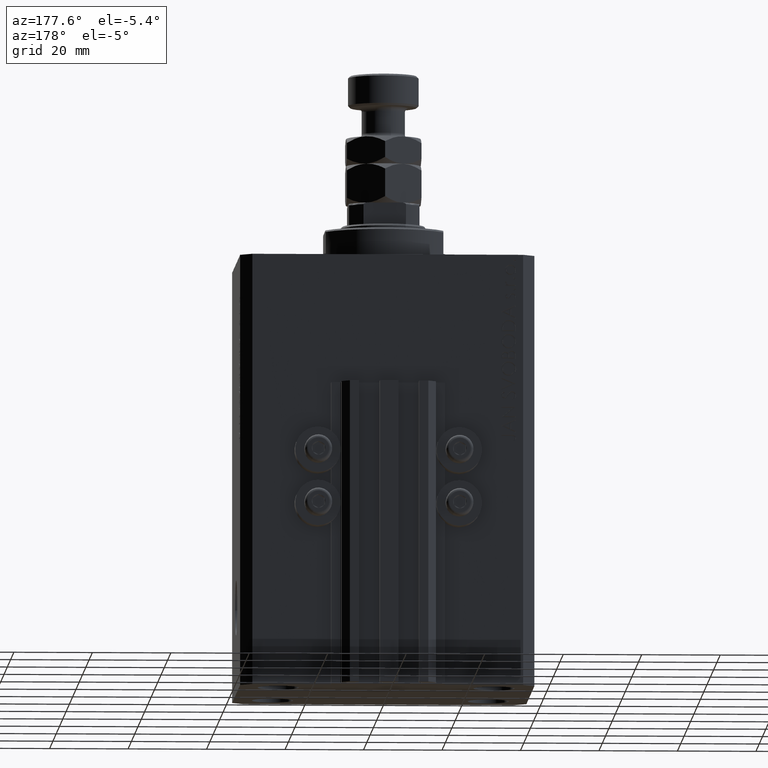
[diagram: clean part render]
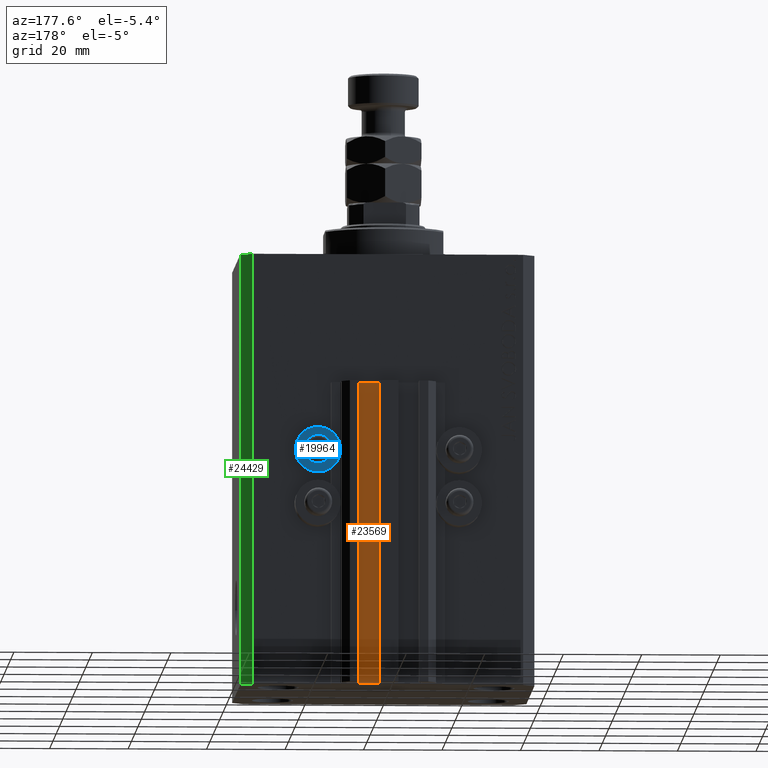
[diagram: same view with three faces highlighted in distinct colors, each labeled with its STEP entity id]
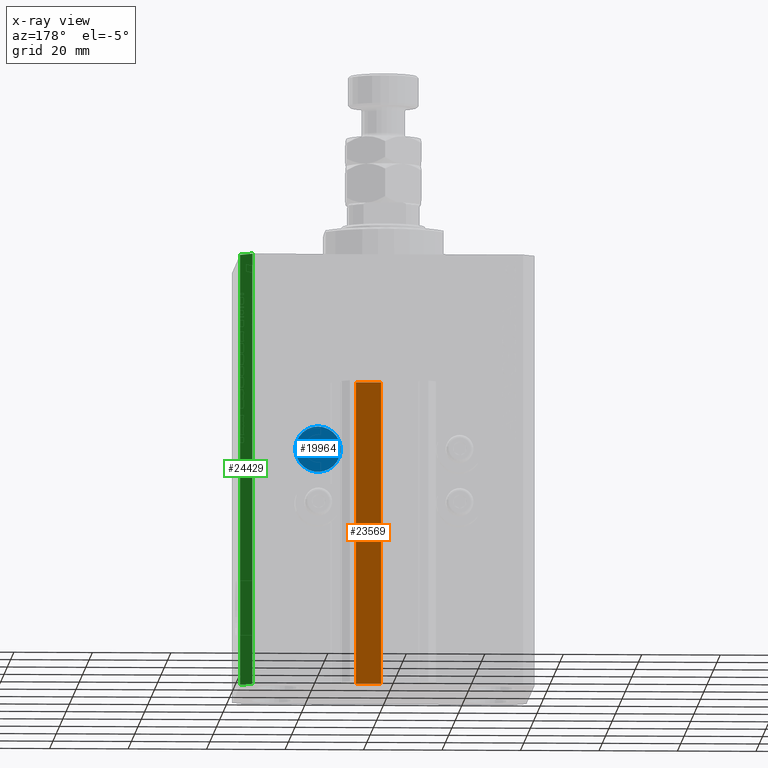
[diagram: x-ray of the same camera — body ghosted, the three highlighted faces saturated]
A machine part, auxiliary view with three faces highlighted in distinct colors.
The next image is the same camera in x-ray (body ghosted, the three faces saturated) — at least one of them is partly hidden behind the body in this view.
Their STEP definitions:

[orange] entity #23569 — the highlighted planar face has unit normal (-0, 1, 0).
#69 = LINE ( 'NONE', #26750, #17432 ) ;
#508 = DIRECTION ( 'NONE',  ( -1.000000000000000000, -1.084202172485504828E-15, 0.000000000000000000 ) ) ;
#892 = CARTESIAN_POINT ( 'NONE',  ( 1.800000000000000933, 29.50000000000000000, -110.0000000000000000 ) ) ;
#1590 = VERTEX_POINT ( 'NONE', #12368 ) ;
#4855 = ORIENTED_EDGE ( 'NONE', *, *, #18651, .T. ) ;
#5260 = DIRECTION ( 'NONE',  ( -1.084202172485504828E-15, 1.000000000000000000, 0.000000000000000000 ) ) ;
#5612 = DIRECTION ( 'NONE',  ( -1.000000000000000000, -1.084202172485504828E-15, 0.000000000000000000 ) ) ;
#6675 = VECTOR ( 'NONE', #508, 1000.000000000000000 ) ;
#10949 = VECTOR ( 'NONE', #44022, 1000.000000000000000 ) ;
#12368 = CARTESIAN_POINT ( 'NONE',  ( 1.800000000000000933, 29.50000000000000000, -33.00000000000000000 ) ) ;
#12680 = PLANE ( 'NONE',  #24469 ) ;
#12785 = LINE ( 'NONE', #27386, #48490 ) ;
#17432 = VECTOR ( 'NONE', #26014, 1000.000000000000000 ) ;
#18651 = EDGE_CURVE ( 'NONE', #36829, #1590, #44258, .T. ) ;
#20315 = CARTESIAN_POINT ( 'NONE',  ( 8.199999999999999289, 29.50000000000000711, -33.00000000000000000 ) ) ;
#22689 = VERTEX_POINT ( 'NONE', #45024 ) ;
#23569 = ADVANCED_FACE ( 'NONE', ( #27273 ), #12680, .T. ) ;
#24469 = AXIS2_PLACEMENT_3D ( 'NONE', #39133, #5260, #42364 ) ;
#26014 = DIRECTION ( 'NONE',  ( 0.000000000000000000, 0.000000000000000000, 1.000000000000000000 ) ) ;
#26750 = CARTESIAN_POINT ( 'NONE',  ( 8.199999999999999289, 29.50000000000000711, -110.0000000000000000 ) ) ;
#26771 = EDGE_LOOP ( 'NONE', ( #31563, #30402, #47610, #4855 ) ) ;
#27273 = FACE_OUTER_BOUND ( 'NONE', #26771, .T. ) ;
#27386 = CARTESIAN_POINT ( 'NONE',  ( 8.199999999999999289, 29.50000000000000711, -33.00000000000000000 ) ) ;
#28048 = EDGE_CURVE ( 'NONE', #22689, #44833, #69, .T. ) ;
#30402 = ORIENTED_EDGE ( 'NONE', *, *, #28048, .F. ) ;
#31563 = ORIENTED_EDGE ( 'NONE', *, *, #38624, .F. ) ;
#33633 = LINE ( 'NONE', #34362, #6675 ) ;
#34362 = CARTESIAN_POINT ( 'NONE',  ( 8.199999999999999289, 29.50000000000000711, -110.0000000000000000 ) ) ;
#36336 = CARTESIAN_POINT ( 'NONE',  ( 1.800000000000000933, 29.50000000000000000, -110.0000000000000000 ) ) ;
#36829 = VERTEX_POINT ( 'NONE', #892 ) ;
#38624 = EDGE_CURVE ( 'NONE', #44833, #1590, #12785, .T. ) ;
#39133 = CARTESIAN_POINT ( 'NONE',  ( 8.199999999999999289, 29.50000000000000711, -110.0000000000000000 ) ) ;
#42364 = DIRECTION ( 'NONE',  ( -1.000000000000000000, -1.084202172485504828E-15, 0.000000000000000000 ) ) ;
#42914 = EDGE_CURVE ( 'NONE', #22689, #36829, #33633, .T. ) ;
#44022 = DIRECTION ( 'NONE',  ( 0.000000000000000000, 0.000000000000000000, 1.000000000000000000 ) ) ;
#44258 = LINE ( 'NONE', #36336, #10949 ) ;
#44833 = VERTEX_POINT ( 'NONE', #20315 ) ;
#45024 = CARTESIAN_POINT ( 'NONE',  ( 8.199999999999999289, 29.50000000000000711, -110.0000000000000000 ) ) ;
#47610 = ORIENTED_EDGE ( 'NONE', *, *, #42914, .T. ) ;
#48490 = VECTOR ( 'NONE', #5612, 1000.000000000000000 ) ;

[blue] entity #19964 — the highlighted planar face has unit normal (0, -1, 0).
#2362 = DIRECTION ( 'NONE',  ( 0.000000000000000000, 0.000000000000000000, 1.000000000000000000 ) ) ;
#2607 = EDGE_CURVE ( 'NONE', #8449, #40797, #41212, .T. ) ;
#3259 = EDGE_CURVE ( 'NONE', #40797, #8449, #15222, .T. ) ;
#6211 = ORIENTED_EDGE ( 'NONE', *, *, #2607, .F. ) ;
#6596 = DIRECTION ( 'NONE',  ( -0.000000000000000000, -1.000000000000000000, -0.000000000000000000 ) ) ;
#8449 = VERTEX_POINT ( 'NONE', #8467 ) ;
#8467 = CARTESIAN_POINT ( 'NONE',  ( 18.00000000000000355, 32.49999999996100541, -56.20000000000000284 ) ) ;
#9605 = CIRCLE ( 'NONE', #15933, 2.000000000000001776 ) ;
#9680 = VERTEX_POINT ( 'NONE', #36088 ) ;
#10308 = CIRCLE ( 'NONE', #25322, 2.000000000000001776 ) ;
#12457 = ORIENTED_EDGE ( 'NONE', *, *, #31250, .T. ) ;
#13786 = DIRECTION ( 'NONE',  ( 0.000000000000000000, 0.000000000000000000, 1.000000000000000000 ) ) ;
#14348 = FACE_BOUND ( 'NONE', #22888, .T. ) ;
#15186 = AXIS2_PLACEMENT_3D ( 'NONE', #47636, #6596, #13786 ) ;
#15222 = CIRCLE ( 'NONE', #23080, 5.799999999999999822 ) ;
#15854 = AXIS2_PLACEMENT_3D ( 'NONE', #48195, #43777, #29421 ) ;
#15933 = AXIS2_PLACEMENT_3D ( 'NONE', #19497, #22051, #48488 ) ;
#19497 = CARTESIAN_POINT ( 'NONE',  ( 18.00000000000000355, 32.49999999996100541, -50.39999999999999858 ) ) ;
#19964 = ADVANCED_FACE ( 'NONE', ( #14348, #24736 ), #39816, .F. ) ;
#20625 = CARTESIAN_POINT ( 'NONE',  ( 18.00000000000000355, 32.49999999996100541, -44.60000000000000142 ) ) ;
#22051 = DIRECTION ( 'NONE',  ( -0.000000000000000000, -1.000000000000000000, -0.000000000000000000 ) ) ;
#22888 = EDGE_LOOP ( 'NONE', ( #31635, #12457 ) ) ;
#23080 = AXIS2_PLACEMENT_3D ( 'NONE', #23658, #46404, #34320 ) ;
#23658 = CARTESIAN_POINT ( 'NONE',  ( 18.00000000000000355, 32.49999999996100541, -50.39999999999999858 ) ) ;
#24408 = EDGE_CURVE ( 'NONE', #27247, #9680, #10308, .T. ) ;
#24736 = FACE_OUTER_BOUND ( 'NONE', #39108, .T. ) ;
#25322 = AXIS2_PLACEMENT_3D ( 'NONE', #39936, #36215, #2362 ) ;
#27247 = VERTEX_POINT ( 'NONE', #37897 ) ;
#29421 = DIRECTION ( 'NONE',  ( -0.000000000000000000, 0.000000000000000000, -1.000000000000000000 ) ) ;
#31250 = EDGE_CURVE ( 'NONE', #9680, #27247, #9605, .T. ) ;
#31635 = ORIENTED_EDGE ( 'NONE', *, *, #24408, .T. ) ;
#34320 = DIRECTION ( 'NONE',  ( 0.000000000000000000, 0.000000000000000000, 1.000000000000000000 ) ) ;
#36088 = CARTESIAN_POINT ( 'NONE',  ( 18.00000000000000355, 32.49999999996100541, -52.40000000000000568 ) ) ;
#36215 = DIRECTION ( 'NONE',  ( -0.000000000000000000, -1.000000000000000000, -0.000000000000000000 ) ) ;
#37897 = CARTESIAN_POINT ( 'NONE',  ( 18.00000000000000355, 32.49999999996100541, -48.39999999999999858 ) ) ;
#39108 = EDGE_LOOP ( 'NONE', ( #42699, #6211 ) ) ;
#39816 = PLANE ( 'NONE',  #15854 ) ;
#39936 = CARTESIAN_POINT ( 'NONE',  ( 18.00000000000000355, 32.49999999996100541, -50.39999999999999858 ) ) ;
#40797 = VERTEX_POINT ( 'NONE', #20625 ) ;
#41212 = CIRCLE ( 'NONE', #15186, 5.799999999999999822 ) ;
#42699 = ORIENTED_EDGE ( 'NONE', *, *, #3259, .F. ) ;
#43777 = DIRECTION ( 'NONE',  ( 0.000000000000000000, -1.000000000000000000, -0.000000000000000000 ) ) ;
#46404 = DIRECTION ( 'NONE',  ( -0.000000000000000000, -1.000000000000000000, -0.000000000000000000 ) ) ;
#47636 = CARTESIAN_POINT ( 'NONE',  ( 18.00000000000000355, 32.49999999996100541, -50.39999999999999858 ) ) ;
#48195 = CARTESIAN_POINT ( 'NONE',  ( 12.20000000000000284, 32.49999999996100541, -50.39999999999999858 ) ) ;
#48488 = DIRECTION ( 'NONE',  ( 0.000000000000000000, 0.000000000000000000, 1.000000000000000000 ) ) ;

[green] entity #24429 — the highlighted planar face has unit normal (0.7071, 0.7071, 0).
#2760 = CARTESIAN_POINT ( 'NONE',  ( 37.50000000000051870, 24.49999999999995381, -110.0000000000000000 ) ) ;
#3168 = CARTESIAN_POINT ( 'NONE',  ( 37.50000000000051870, 24.49999999999995381, 0.000000000000000000 ) ) ;
#4456 = VERTEX_POINT ( 'NONE', #29672 ) ;
#4761 = AXIS2_PLACEMENT_3D ( 'NONE', #10023, #47593, #13736 ) ;
#5208 = DIRECTION ( 'NONE',  ( -0.7071067811865364705, 0.7071067811865584529, 0.000000000000000000 ) ) ;
#8564 = EDGE_CURVE ( 'NONE', #34014, #27565, #35894, .T. ) ;
#10023 = CARTESIAN_POINT ( 'NONE',  ( 37.50000000000051870, 24.49999999999995381, -110.0000000000000000 ) ) ;
#10175 = DIRECTION ( 'NONE',  ( 0.000000000000000000, 0.000000000000000000, 1.000000000000000000 ) ) ;
#10349 = VERTEX_POINT ( 'NONE', #32218 ) ;
#11694 = LINE ( 'NONE', #18636, #43637 ) ;
#13351 = ORIENTED_EDGE ( 'NONE', *, *, #8564, .F. ) ;
#13736 = DIRECTION ( 'NONE',  ( -0.7071067811865364705, 0.7071067811865584529, 0.000000000000000000 ) ) ;
#15418 = DIRECTION ( 'NONE',  ( 0.000000000000000000, 0.000000000000000000, 1.000000000000000000 ) ) ;
#17455 = FACE_OUTER_BOUND ( 'NONE', #33706, .T. ) ;
#18447 = EDGE_CURVE ( 'NONE', #34014, #4456, #46250, .T. ) ;
#18529 = VECTOR ( 'NONE', #10175, 1000.000000000000000 ) ;
#18636 = CARTESIAN_POINT ( 'NONE',  ( 34.50000000000056843, 27.50000000000000000, -110.0000000000000000 ) ) ;
#20048 = CARTESIAN_POINT ( 'NONE',  ( 37.50000000000051870, 24.49999999999995381, -110.0000000000000000 ) ) ;
#20738 = ORIENTED_EDGE ( 'NONE', *, *, #18447, .T. ) ;
#24429 = ADVANCED_FACE ( 'NONE', ( #17455 ), #32519, .T. ) ;
#25671 = DIRECTION ( 'NONE',  ( -0.7071067811865364705, 0.7071067811865584529, 0.000000000000000000 ) ) ;
#27565 = VERTEX_POINT ( 'NONE', #30388 ) ;
#29672 = CARTESIAN_POINT ( 'NONE',  ( 34.50000000000056843, 27.50000000000000000, -110.0000000000000000 ) ) ;
#30388 = CARTESIAN_POINT ( 'NONE',  ( 37.50000000000051870, 24.49999999999995381, 0.000000000000000000 ) ) ;
#31015 = CARTESIAN_POINT ( 'NONE',  ( 37.50000000000051870, 24.49999999999995381, -110.0000000000000000 ) ) ;
#32218 = CARTESIAN_POINT ( 'NONE',  ( 34.50000000000056843, 27.50000000000000000, 0.000000000000000000 ) ) ;
#32519 = PLANE ( 'NONE',  #4761 ) ;
#33706 = EDGE_LOOP ( 'NONE', ( #48192, #13351, #20738, #40234 ) ) ;
#34014 = VERTEX_POINT ( 'NONE', #31015 ) ;
#34248 = EDGE_CURVE ( 'NONE', #4456, #10349, #11694, .T. ) ;
#35894 = LINE ( 'NONE', #2760, #18529 ) ;
#37787 = VECTOR ( 'NONE', #5208, 1000.000000000000114 ) ;
#40234 = ORIENTED_EDGE ( 'NONE', *, *, #34248, .T. ) ;
#41239 = LINE ( 'NONE', #3168, #46261 ) ;
#43637 = VECTOR ( 'NONE', #15418, 1000.000000000000000 ) ;
#46115 = EDGE_CURVE ( 'NONE', #27565, #10349, #41239, .T. ) ;
#46250 = LINE ( 'NONE', #20048, #37787 ) ;
#46261 = VECTOR ( 'NONE', #25671, 1000.000000000000114 ) ;
#47593 = DIRECTION ( 'NONE',  ( 0.7071067811865585639, 0.7071067811865365815, -0.000000000000000000 ) ) ;
#48192 = ORIENTED_EDGE ( 'NONE', *, *, #46115, .F. ) ;